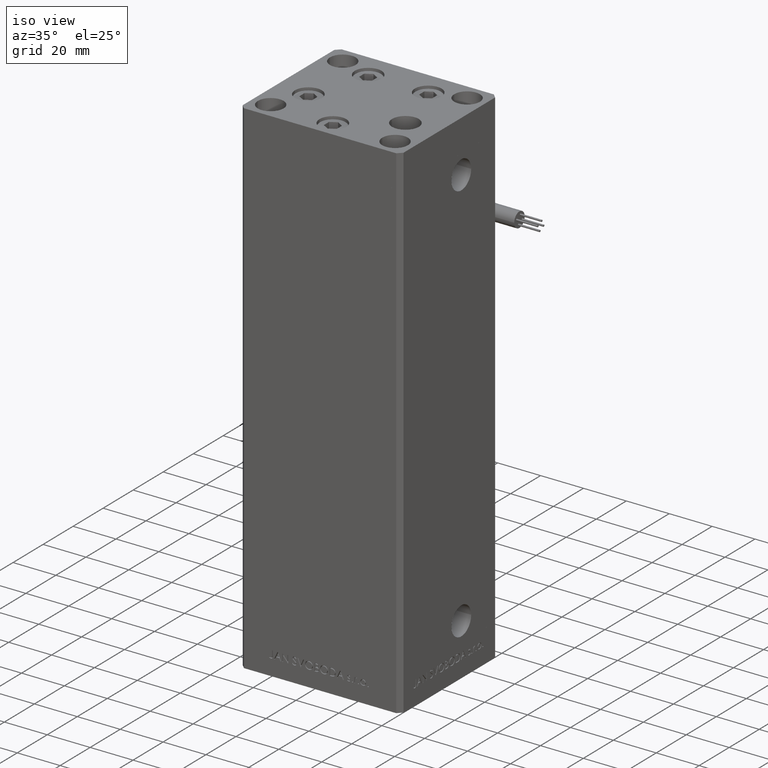
[diagram: clean part render]
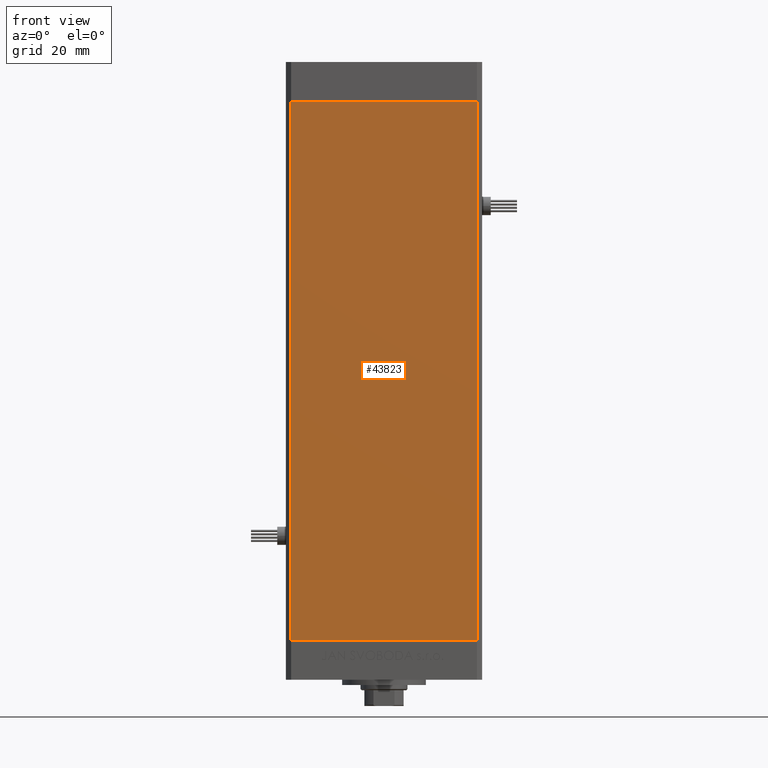
[diagram: tour spotlight — one face highlighted and labeled with its STEP entity id]
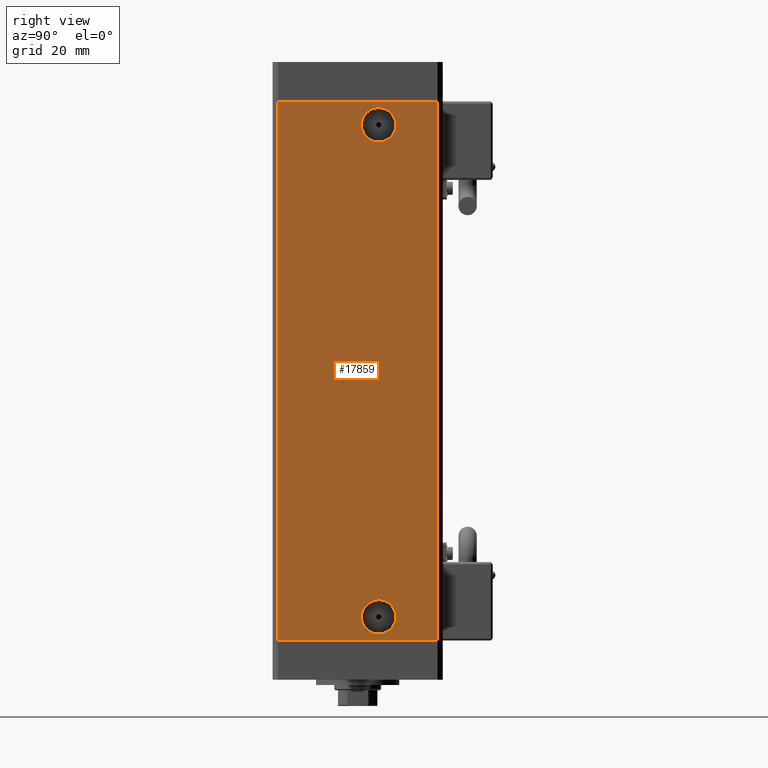
[diagram: tour spotlight — one face highlighted and labeled with its STEP entity id]
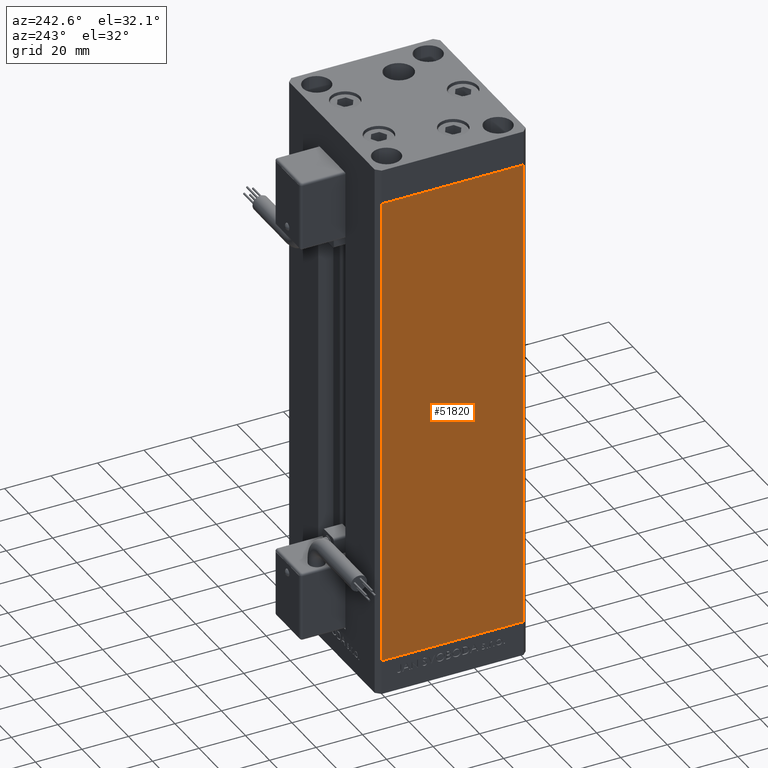
[diagram: tour spotlight — one face highlighted and labeled with its STEP entity id]
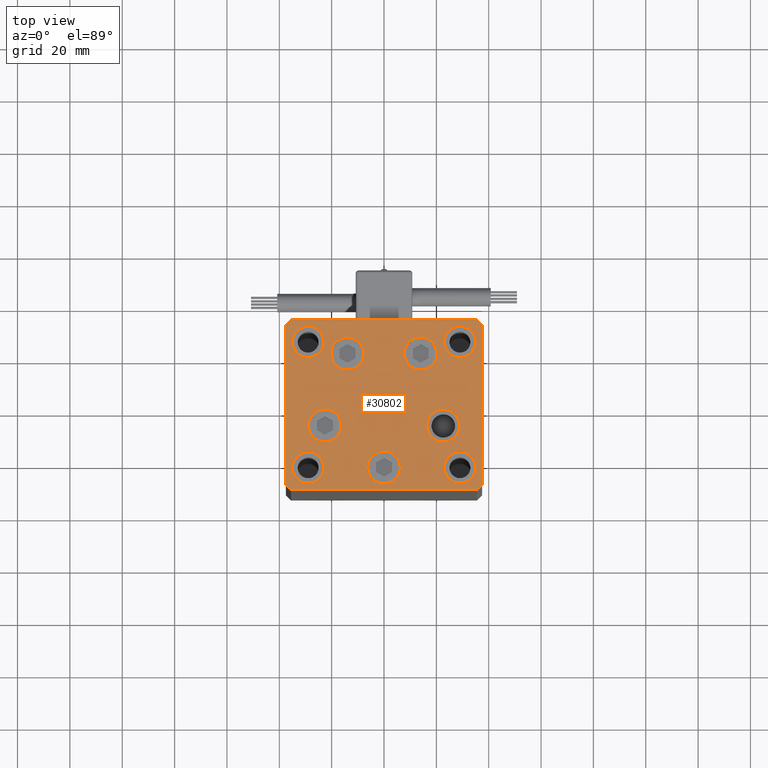
[diagram: tour spotlight — one face highlighted and labeled with its STEP entity id]
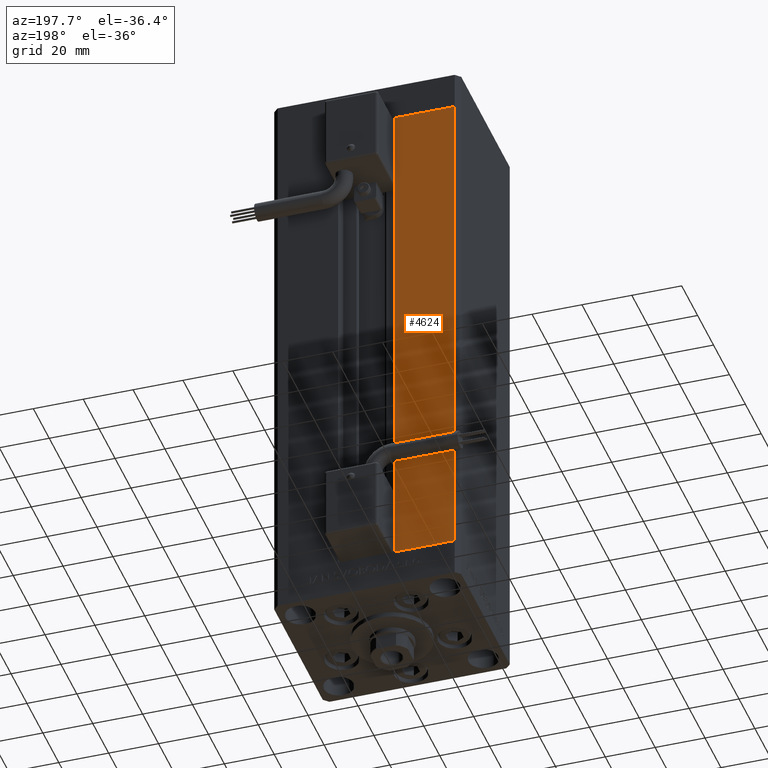
[diagram: tour spotlight — one face highlighted and labeled with its STEP entity id]
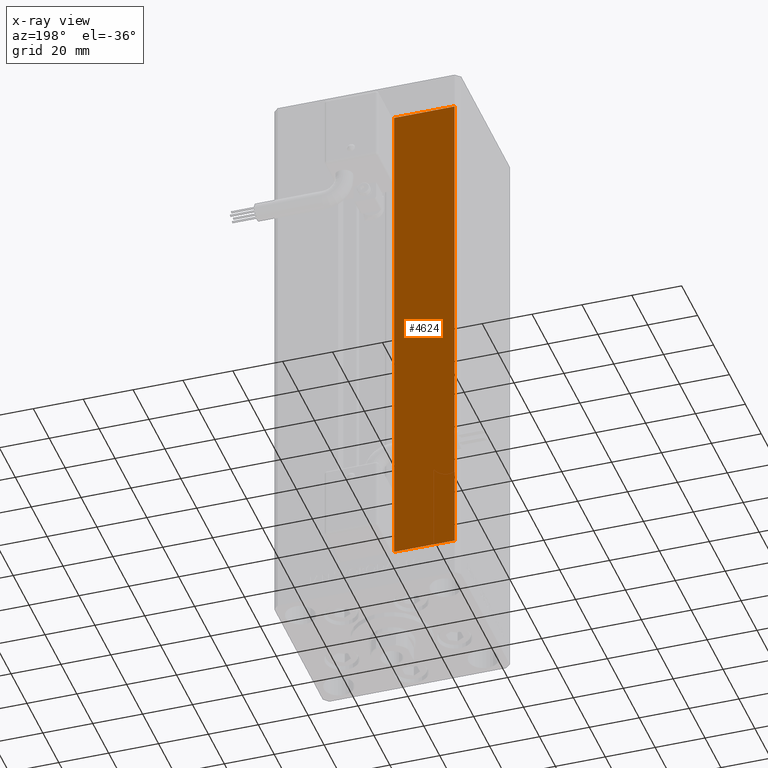
[diagram: x-ray of the same camera — body ghosted, this tour face saturated]
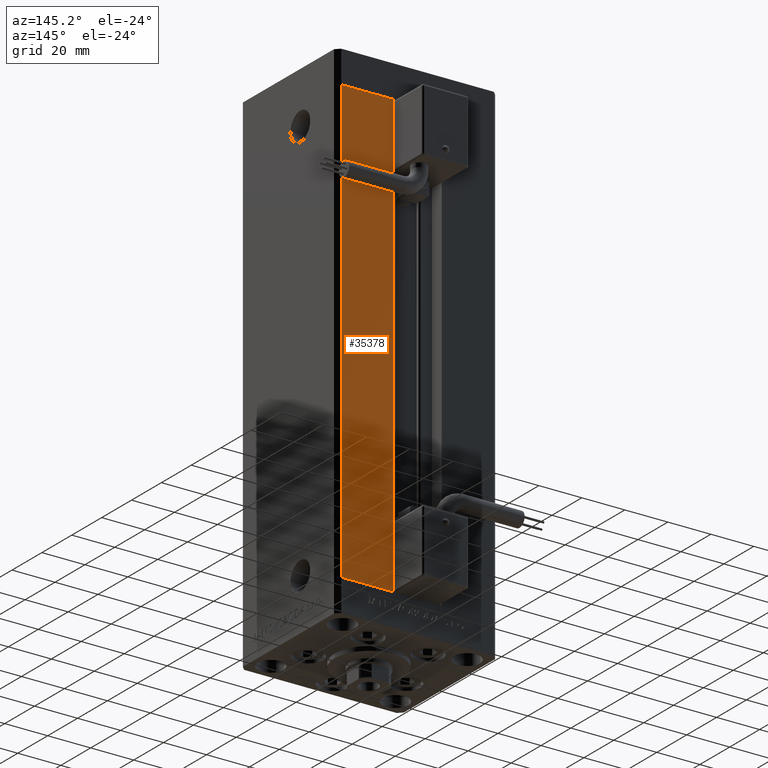
[diagram: tour spotlight — one face highlighted and labeled with its STEP entity id]
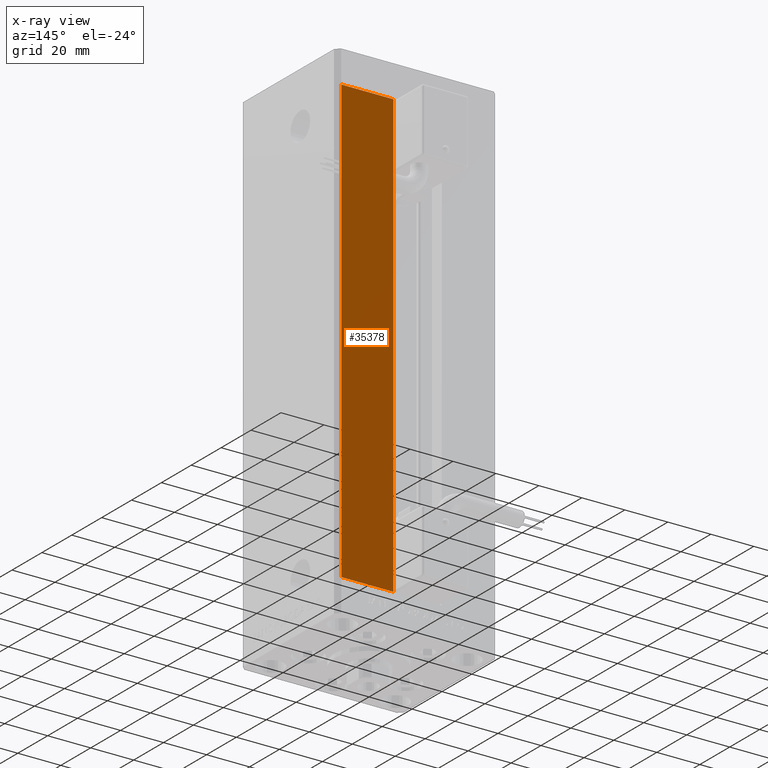
[diagram: x-ray of the same camera — body ghosted, this tour face saturated]
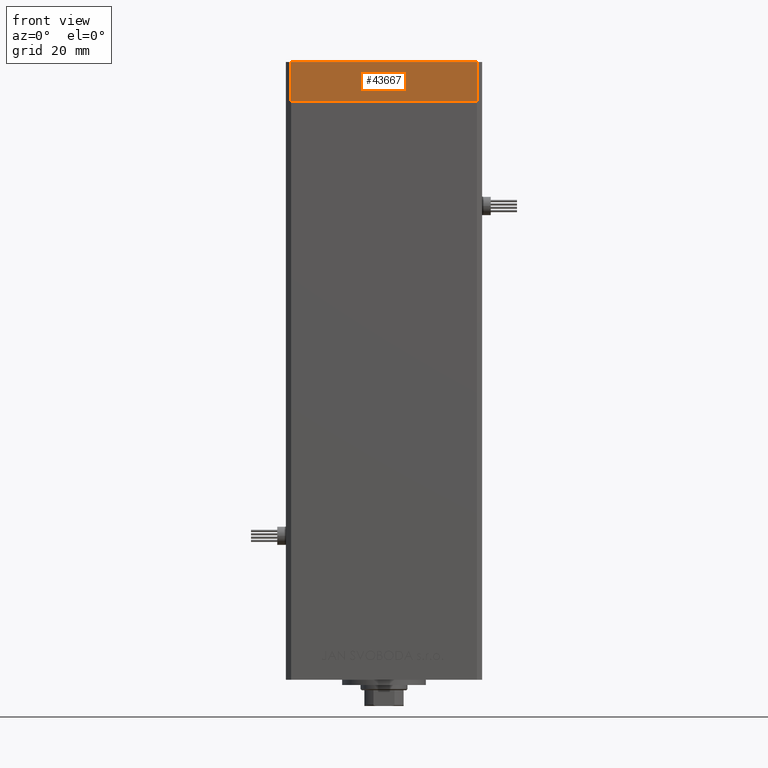
[diagram: tour spotlight — one face highlighted and labeled with its STEP entity id]
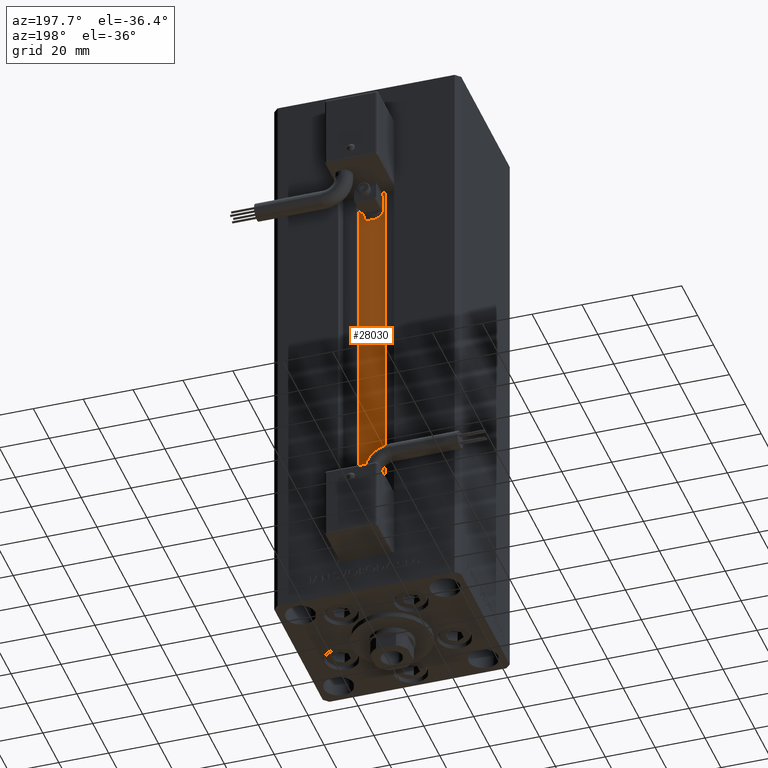
[diagram: tour spotlight — one face highlighted and labeled with its STEP entity id]
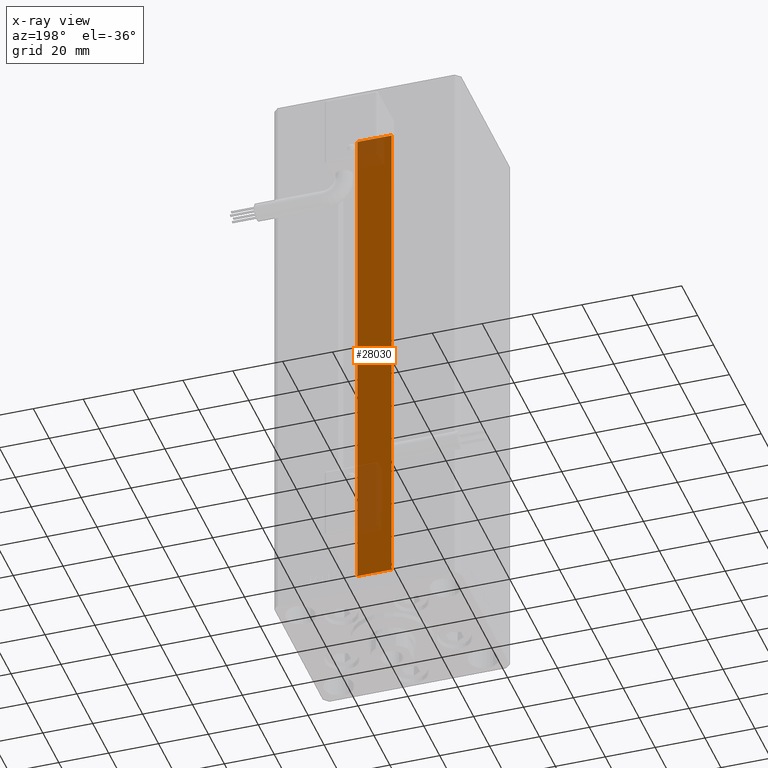
[diagram: x-ray of the same camera — body ghosted, this tour face saturated]
A machine part: a face-by-face anatomy tour. The part has 1377 B-rep faces; the first image is the clean iso view, then the 8 largest visible faces are spotlighted one at a time (largest first), each with its STEP entity span.

Face 1 — front view, entity #43823. In plain terms, the highlighted planar face has unit normal (0, 1, 0).
Definition (entity closure, byte-faithful):
#1151 = VERTEX_POINT ( 'NONE', #38347 ) ;
#1593 = VECTOR ( 'NONE', #45618, 1000.000000000000000 ) ;
#3342 = DIRECTION ( 'NONE',  ( -0.000000000000000000, -0.000000000000000000, -1.000000000000000000 ) ) ;
#3379 = LINE ( 'NONE', #19509, #16998 ) ;
#4199 = VERTEX_POINT ( 'NONE', #22593 ) ;
#9380 = AXIS2_PLACEMENT_3D ( 'NONE', #21085, #32206, #37231 ) ;
#9543 = DIRECTION ( 'NONE',  ( 1.000000000000000000, 0.000000000000000000, 0.000000000000000000 ) ) ;
#11776 = LINE ( 'NONE', #16244, #1593 ) ;
#11868 = CARTESIAN_POINT ( 'NONE',  ( -35.49999999999999289, -32.50000000000000000, 0.000000000000000000 ) ) ;
#12235 = EDGE_CURVE ( 'NONE', #4199, #17484, #31115, .T. ) ;
#12573 = VERTEX_POINT ( 'NONE', #32368 ) ;
#16244 = CARTESIAN_POINT ( 'NONE',  ( -35.49999999999999289, -32.50000000000000000, 206.0000000000000000 ) ) ;
#16998 = VECTOR ( 'NONE', #27448, 1000.000000000000000 ) ;
#17069 = VECTOR ( 'NONE', #9543, 1000.000000000000000 ) ;
#17484 = VERTEX_POINT ( 'NONE', #11868 ) ;
#19509 = CARTESIAN_POINT ( 'NONE',  ( 35.49999999999999289, -32.50000000000000000, 206.0000000000000000 ) ) ;
#21085 = CARTESIAN_POINT ( 'NONE',  ( -35.49999999999999289, -32.50000000000000000, 206.0000000000000000 ) ) ;
#22542 = EDGE_CURVE ( 'NONE', #4199, #1151, #11776, .T. ) ;
#22593 = CARTESIAN_POINT ( 'NONE',  ( -35.49999999999999289, -32.50000000000000000, 206.0000000000000000 ) ) ;
#22821 = ORIENTED_EDGE ( 'NONE', *, *, #47109, .T. ) ;
#23087 = ORIENTED_EDGE ( 'NONE', *, *, #27810, .F. ) ;
#24270 = ORIENTED_EDGE ( 'NONE', *, *, #12235, .T. ) ;
#27448 = DIRECTION ( 'NONE',  ( -0.000000000000000000, -0.000000000000000000, -1.000000000000000000 ) ) ;
#27810 = EDGE_CURVE ( 'NONE', #1151, #12573, #3379, .T. ) ;
#29631 = CARTESIAN_POINT ( 'NONE',  ( -35.49999999999999289, -32.50000000000000000, 0.000000000000000000 ) ) ;
#31115 = LINE ( 'NONE', #47269, #44569 ) ;
#32206 = DIRECTION ( 'NONE',  ( 0.000000000000000000, 1.000000000000000000, 0.000000000000000000 ) ) ;
#32368 = CARTESIAN_POINT ( 'NONE',  ( 35.49999999999999289, -32.50000000000000000, 0.000000000000000000 ) ) ;
#33608 = LINE ( 'NONE', #29631, #17069 ) ;
#34167 = ORIENTED_EDGE ( 'NONE', *, *, #22542, .F. ) ;
#37231 = DIRECTION ( 'NONE',  ( 0.000000000000000000, -0.000000000000000000, 1.000000000000000000 ) ) ;
#38347 = CARTESIAN_POINT ( 'NONE',  ( 35.49999999999999289, -32.50000000000000000, 206.0000000000000000 ) ) ;
#40419 = FACE_OUTER_BOUND ( 'NONE', #43149, .T. ) ;
#43149 = EDGE_LOOP ( 'NONE', ( #22821, #23087, #34167, #24270 ) ) ;
#43823 = ADVANCED_FACE ( 'NONE', ( #40419 ), #44146, .F. ) ;
#44146 = PLANE ( 'NONE',  #9380 ) ;
#44569 = VECTOR ( 'NONE', #3342, 1000.000000000000000 ) ;
#45618 = DIRECTION ( 'NONE',  ( 1.000000000000000000, 0.000000000000000000, 0.000000000000000000 ) ) ;
#47109 = EDGE_CURVE ( 'NONE', #17484, #12573, #33608, .T. ) ;
#47269 = CARTESIAN_POINT ( 'NONE',  ( -35.49999999999999289, -32.50000000000000000, 206.0000000000000000 ) ) ;

Face 2 — right view, entity #17859. In plain terms, the highlighted planar face has unit normal (1, -0, 0).
Definition (entity closure, byte-faithful):
#535 = ORIENTED_EDGE ( 'NONE', *, *, #28875, .F. ) ;
#1627 = VERTEX_POINT ( 'NONE', #26750 ) ;
#2286 = CARTESIAN_POINT ( 'NONE',  ( 37.50000000000000000, 7.999999999999991118, 8.999999999999994671 ) ) ;
#3975 = EDGE_LOOP ( 'NONE', ( #26016, #42199 ) ) ;
#4132 = CARTESIAN_POINT ( 'NONE',  ( 37.50000000000000000, 14.57999999999999829, 8.999999999999994671 ) ) ;
#5100 = CIRCLE ( 'NONE', #42277, 6.580000000000006288 ) ;
#5723 = CARTESIAN_POINT ( 'NONE',  ( 37.50000000000000711, 30.50000000000000000, 0.000000000000000000 ) ) ;
#6499 = DIRECTION ( 'NONE',  ( 0.000000000000000000, 1.000000000000000000, 0.000000000000000000 ) ) ;
#7396 = VERTEX_POINT ( 'NONE', #34666 ) ;
#7532 = CARTESIAN_POINT ( 'NONE',  ( 37.49999999999999289, -30.50000000000000000, 206.0000000000000000 ) ) ;
#7777 = CIRCLE ( 'NONE', #44141, 6.580000000000014282 ) ;
#7884 = LINE ( 'NONE', #44931, #19995 ) ;
#8033 = EDGE_CURVE ( 'NONE', #1627, #21900, #40184, .T. ) ;
#8853 = DIRECTION ( 'NONE',  ( 0.000000000000000000, 1.000000000000000000, 0.000000000000000000 ) ) ;
#9853 = FACE_BOUND ( 'NONE', #3975, .T. ) ;
#10634 = VERTEX_POINT ( 'NONE', #5723 ) ;
#11214 = EDGE_CURVE ( 'NONE', #10634, #29402, #7884, .T. ) ;
#12721 = VECTOR ( 'NONE', #50399, 1000.000000000000000 ) ;
#13381 = LINE ( 'NONE', #34263, #12721 ) ;
#14076 = DIRECTION ( 'NONE',  ( 2.275047181608928137E-16, 1.000000000000000000, 0.000000000000000000 ) ) ;
#14240 = DIRECTION ( 'NONE',  ( 0.000000000000000000, 1.000000000000000000, 0.000000000000000000 ) ) ;
#14973 = CARTESIAN_POINT ( 'NONE',  ( 37.50000000000000711, 30.50000000000000000, 206.0000000000000000 ) ) ;
#15852 = CARTESIAN_POINT ( 'NONE',  ( 37.50000000000000000, 14.58000000000000540, 196.9999999999999716 ) ) ;
#15920 = DIRECTION ( 'NONE',  ( 1.000000000000000000, -2.275047181608927644E-16, 0.000000000000000000 ) ) ;
#15944 = DIRECTION ( 'NONE',  ( 1.000000000000000000, -2.275047181608927644E-16, 0.000000000000000000 ) ) ;
#17354 = AXIS2_PLACEMENT_3D ( 'NONE', #23856, #15920, #8853 ) ;
#17859 = ADVANCED_FACE ( 'NONE', ( #29424, #9853, #18030 ), #21737, .T. ) ;
#18030 = FACE_OUTER_BOUND ( 'NONE', #39418, .T. ) ;
#18767 = EDGE_LOOP ( 'NONE', ( #535, #23949 ) ) ;
#19699 = LINE ( 'NONE', #7532, #28090 ) ;
#19995 = VECTOR ( 'NONE', #35939, 1000.000000000000000 ) ;
#21737 = PLANE ( 'NONE',  #32801 ) ;
#21814 = CARTESIAN_POINT ( 'NONE',  ( 37.50000000000000000, 1.419999999999985496, 8.999999999999994671 ) ) ;
#21900 = VERTEX_POINT ( 'NONE', #15852 ) ;
#22242 = VERTEX_POINT ( 'NONE', #4132 ) ;
#23365 = CARTESIAN_POINT ( 'NONE',  ( 37.49999999999999289, -30.50000000000000000, 0.000000000000000000 ) ) ;
#23856 = CARTESIAN_POINT ( 'NONE',  ( 37.50000000000000000, 7.999999999999991118, 196.9999999999999716 ) ) ;
#23949 = ORIENTED_EDGE ( 'NONE', *, *, #42926, .F. ) ;
#24393 = ORIENTED_EDGE ( 'NONE', *, *, #33820, .T. ) ;
#25451 = CARTESIAN_POINT ( 'NONE',  ( 37.50000000000000711, 30.50000000000000000, 206.0000000000000000 ) ) ;
#25458 = VERTEX_POINT ( 'NONE', #21814 ) ;
#25470 = EDGE_CURVE ( 'NONE', #40128, #7396, #13381, .T. ) ;
#26016 = ORIENTED_EDGE ( 'NONE', *, *, #29479, .F. ) ;
#26750 = CARTESIAN_POINT ( 'NONE',  ( 37.50000000000000000, 1.419999999999975948, 196.9999999999999716 ) ) ;
#27106 = DIRECTION ( 'NONE',  ( -0.000000000000000000, -0.000000000000000000, -1.000000000000000000 ) ) ;
#27395 = LINE ( 'NONE', #14973, #35659 ) ;
#28023 = AXIS2_PLACEMENT_3D ( 'NONE', #2286, #50429, #6499 ) ;
#28090 = VECTOR ( 'NONE', #27106, 1000.000000000000000 ) ;
#28875 = EDGE_CURVE ( 'NONE', #22242, #25458, #40728, .T. ) ;
#29060 = EDGE_CURVE ( 'NONE', #40128, #10634, #27395, .T. ) ;
#29402 = VERTEX_POINT ( 'NONE', #23365 ) ;
#29424 = FACE_BOUND ( 'NONE', #18767, .T. ) ;
#29479 = EDGE_CURVE ( 'NONE', #21900, #1627, #7777, .T. ) ;
#32725 = ORIENTED_EDGE ( 'NONE', *, *, #25470, .T. ) ;
#32801 = AXIS2_PLACEMENT_3D ( 'NONE', #25451, #41604, #14076 ) ;
#33820 = EDGE_CURVE ( 'NONE', #7396, #29402, #19699, .T. ) ;
#34153 = ORIENTED_EDGE ( 'NONE', *, *, #29060, .F. ) ;
#34263 = CARTESIAN_POINT ( 'NONE',  ( 37.50000000000000711, 30.50000000000000000, 206.0000000000000000 ) ) ;
#34666 = CARTESIAN_POINT ( 'NONE',  ( 37.49999999999999289, -30.50000000000000000, 206.0000000000000000 ) ) ;
#35659 = VECTOR ( 'NONE', #43562, 1000.000000000000000 ) ;
#35939 = DIRECTION ( 'NONE',  ( -2.275047181608927644E-16, -1.000000000000000000, 0.000000000000000000 ) ) ;
#39418 = EDGE_LOOP ( 'NONE', ( #51152, #34153, #32725, #24393 ) ) ;
#40128 = VERTEX_POINT ( 'NONE', #51584 ) ;
#40184 = CIRCLE ( 'NONE', #17354, 6.580000000000014282 ) ;
#40553 = CARTESIAN_POINT ( 'NONE',  ( 37.50000000000000000, 7.999999999999991118, 196.9999999999999716 ) ) ;
#40728 = CIRCLE ( 'NONE', #28023, 6.580000000000006288 ) ;
#41604 = DIRECTION ( 'NONE',  ( 1.000000000000000000, -2.275047181608928137E-16, 0.000000000000000000 ) ) ;
#42199 = ORIENTED_EDGE ( 'NONE', *, *, #8033, .F. ) ;
#42277 = AXIS2_PLACEMENT_3D ( 'NONE', #46011, #50485, #14240 ) ;
#42926 = EDGE_CURVE ( 'NONE', #25458, #22242, #5100, .T. ) ;
#43562 = DIRECTION ( 'NONE',  ( -0.000000000000000000, -0.000000000000000000, -1.000000000000000000 ) ) ;
#44141 = AXIS2_PLACEMENT_3D ( 'NONE', #40553, #15944, #48501 ) ;
#44931 = CARTESIAN_POINT ( 'NONE',  ( 37.50000000000000711, 30.50000000000000000, 0.000000000000000000 ) ) ;
#46011 = CARTESIAN_POINT ( 'NONE',  ( 37.50000000000000000, 7.999999999999991118, 8.999999999999994671 ) ) ;
#48501 = DIRECTION ( 'NONE',  ( 0.000000000000000000, 1.000000000000000000, 0.000000000000000000 ) ) ;
#50399 = DIRECTION ( 'NONE',  ( -2.275047181608927644E-16, -1.000000000000000000, 0.000000000000000000 ) ) ;
#50429 = DIRECTION ( 'NONE',  ( 1.000000000000000000, -2.275047181608927644E-16, 0.000000000000000000 ) ) ;
#50485 = DIRECTION ( 'NONE',  ( 1.000000000000000000, -2.275047181608927644E-16, 0.000000000000000000 ) ) ;
#51152 = ORIENTED_EDGE ( 'NONE', *, *, #11214, .F. ) ;
#51584 = CARTESIAN_POINT ( 'NONE',  ( 37.50000000000000711, 30.50000000000000000, 206.0000000000000000 ) ) ;

Face 3 — auxiliary view, entity #51820. In plain terms, the highlighted planar face has unit normal (1, 0, 0).
Definition (entity closure, byte-faithful):
#646 = DIRECTION ( 'NONE',  ( -0.000000000000000000, -0.000000000000000000, -1.000000000000000000 ) ) ;
#1493 = CARTESIAN_POINT ( 'NONE',  ( -37.50000000000000711, 30.50000000000000000, 206.0000000000000000 ) ) ;
#2282 = DIRECTION ( 'NONE',  ( 1.000000000000000000, 2.275047181608928137E-16, -0.000000000000000000 ) ) ;
#4728 = EDGE_LOOP ( 'NONE', ( #42350, #46094, #9176, #47745 ) ) ;
#6789 = VECTOR ( 'NONE', #24484, 1000.000000000000000 ) ;
#8712 = CARTESIAN_POINT ( 'NONE',  ( -37.49999999999999289, -30.50000000000000000, 206.0000000000000000 ) ) ;
#9176 = ORIENTED_EDGE ( 'NONE', *, *, #34728, .F. ) ;
#10669 = CARTESIAN_POINT ( 'NONE',  ( -37.49999999999999289, -30.50000000000000000, 206.0000000000000000 ) ) ;
#11326 = CARTESIAN_POINT ( 'NONE',  ( -37.50000000000000711, 30.50000000000000000, 0.000000000000000000 ) ) ;
#11787 = DIRECTION ( 'NONE',  ( 2.275047181608927644E-16, -1.000000000000000000, 0.000000000000000000 ) ) ;
#12891 = CARTESIAN_POINT ( 'NONE',  ( -37.49999999999999289, -30.50000000000000000, 0.000000000000000000 ) ) ;
#14447 = FACE_OUTER_BOUND ( 'NONE', #4728, .T. ) ;
#15618 = EDGE_CURVE ( 'NONE', #20563, #41433, #39813, .T. ) ;
#15868 = VERTEX_POINT ( 'NONE', #10669 ) ;
#19674 = VECTOR ( 'NONE', #11787, 1000.000000000000000 ) ;
#20563 = VERTEX_POINT ( 'NONE', #47389 ) ;
#20611 = DIRECTION ( 'NONE',  ( -0.000000000000000000, -0.000000000000000000, -1.000000000000000000 ) ) ;
#21046 = CARTESIAN_POINT ( 'NONE',  ( -37.50000000000000711, 30.50000000000000000, 0.000000000000000000 ) ) ;
#24484 = DIRECTION ( 'NONE',  ( 2.275047181608927644E-16, -1.000000000000000000, 0.000000000000000000 ) ) ;
#25273 = LINE ( 'NONE', #21046, #6789 ) ;
#25343 = EDGE_CURVE ( 'NONE', #41433, #27297, #25273, .T. ) ;
#27297 = VERTEX_POINT ( 'NONE', #12891 ) ;
#28674 = CARTESIAN_POINT ( 'NONE',  ( -37.50000000000000711, 30.50000000000000000, 206.0000000000000000 ) ) ;
#29529 = LINE ( 'NONE', #1493, #19674 ) ;
#32491 = LINE ( 'NONE', #8712, #38343 ) ;
#32648 = EDGE_CURVE ( 'NONE', #15868, #27297, #32491, .T. ) ;
#32729 = VECTOR ( 'NONE', #646, 1000.000000000000000 ) ;
#34059 = AXIS2_PLACEMENT_3D ( 'NONE', #51476, #2282, #50953 ) ;
#34728 = EDGE_CURVE ( 'NONE', #20563, #15868, #29529, .T. ) ;
#34817 = PLANE ( 'NONE',  #34059 ) ;
#38343 = VECTOR ( 'NONE', #20611, 1000.000000000000000 ) ;
#39813 = LINE ( 'NONE', #28674, #32729 ) ;
#41433 = VERTEX_POINT ( 'NONE', #11326 ) ;
#42350 = ORIENTED_EDGE ( 'NONE', *, *, #25343, .T. ) ;
#46094 = ORIENTED_EDGE ( 'NONE', *, *, #32648, .F. ) ;
#47389 = CARTESIAN_POINT ( 'NONE',  ( -37.50000000000000711, 30.50000000000000000, 206.0000000000000000 ) ) ;
#47745 = ORIENTED_EDGE ( 'NONE', *, *, #15618, .T. ) ;
#50953 = DIRECTION ( 'NONE',  ( -2.275047181608928137E-16, 1.000000000000000000, 0.000000000000000000 ) ) ;
#51476 = CARTESIAN_POINT ( 'NONE',  ( -37.50000000000000711, 30.50000000000000000, 206.0000000000000000 ) ) ;
#51820 = ADVANCED_FACE ( 'NONE', ( #14447 ), #34817, .F. ) ;

Face 4 — top view, entity #30802. In plain terms, the highlighted planar face has unit normal (0, 0, 1).
Definition (entity closure, byte-faithful):
#15 = VECTOR ( 'NONE', #14496, 1000.000000000000000 ) ;
#298 = CARTESIAN_POINT ( 'NONE',  ( -6.249999999999997335, -24.00000000000000000, 0.000000000000000000 ) ) ;
#506 = CARTESIAN_POINT ( 'NONE',  ( 23.00000000000001066, -23.99999999999999289, 0.000000000000000000 ) ) ;
#721 = ORIENTED_EDGE ( 'NONE', *, *, #43663, .T. ) ;
#1319 = AXIS2_PLACEMENT_3D ( 'NONE', #35204, #51337, #42625 ) ;
#1402 = EDGE_CURVE ( 'NONE', #27819, #33862, #34011, .T. ) ;
#1724 = VERTEX_POINT ( 'NONE', #33587 ) ;
#1797 = DIRECTION ( 'NONE',  ( 0.000000000000000000, -0.000000000000000000, -1.000000000000000000 ) ) ;
#1930 = ORIENTED_EDGE ( 'NONE', *, *, #8505, .T. ) ;
#2308 = CARTESIAN_POINT ( 'NONE',  ( -37.49999999999998579, -30.50000000000001421, 0.000000000000000000 ) ) ;
#2595 = CARTESIAN_POINT ( 'NONE',  ( 20.24106857963322526, 19.50000000000000000, 0.000000000000000000 ) ) ;
#2633 = DIRECTION ( 'NONE',  ( 0.000000000000000000, -0.000000000000000000, -1.000000000000000000 ) ) ;
#2884 = DIRECTION ( 'NONE',  ( 1.000000000000000000, 0.000000000000000000, 0.000000000000000000 ) ) ;
#3285 = DIRECTION ( 'NONE',  ( 1.000000000000000000, 0.000000000000000000, 0.000000000000000000 ) ) ;
#3553 = AXIS2_PLACEMENT_3D ( 'NONE', #22222, #9812, #42086 ) ;
#3701 = DIRECTION ( 'NONE',  ( 0.7071067811865474617, -0.7071067811865474617, 0.000000000000000000 ) ) ;
#3882 = ORIENTED_EDGE ( 'NONE', *, *, #4208, .T. ) ;
#4208 = EDGE_CURVE ( 'NONE', #12233, #13655, #14690, .T. ) ;
#4275 = DIRECTION ( 'NONE',  ( 0.000000000000000000, -0.000000000000000000, -1.000000000000000000 ) ) ;
#4484 = CARTESIAN_POINT ( 'NONE',  ( 35.49999999999992184, 32.50000000000000711, 0.000000000000000000 ) ) ;
#4594 = VERTEX_POINT ( 'NONE', #2308 ) ;
#4623 = DIRECTION ( 'NONE',  ( 1.000000000000000000, 0.000000000000000000, 0.000000000000000000 ) ) ;
#4832 = CARTESIAN_POINT ( 'NONE',  ( -29.00000000000001066, 24.00000000000000711, 0.000000000000000000 ) ) ;
#4850 = CIRCLE ( 'NONE', #25962, 6.250000000000001776 ) ;
#4992 = EDGE_CURVE ( 'NONE', #11039, #43500, #29749, .T. ) ;
#5401 = EDGE_CURVE ( 'NONE', #1724, #23784, #13888, .T. ) ;
#5518 = DIRECTION ( 'NONE',  ( -1.478780668045802821E-15, 1.000000000000000000, 0.000000000000000000 ) ) ;
#5665 = AXIS2_PLACEMENT_3D ( 'NONE', #23202, #39874, #43063 ) ;
#5945 = VERTEX_POINT ( 'NONE', #14683 ) ;
#5992 = VECTOR ( 'NONE', #3701, 1000.000000000000114 ) ;
#6056 = DIRECTION ( 'NONE',  ( 1.000000000000000000, 0.000000000000000000, 0.000000000000000000 ) ) ;
#6289 = LINE ( 'NONE', #26652, #15 ) ;
#6827 = CARTESIAN_POINT ( 'NONE',  ( 37.49999999999992184, 30.50000000000001066, 0.000000000000000000 ) ) ;
#6852 = FACE_BOUND ( 'NONE', #26648, .T. ) ;
#6939 = EDGE_LOOP ( 'NONE', ( #21838, #10345 ) ) ;
#7118 = FACE_OUTER_BOUND ( 'NONE', #23719, .T. ) ;
#7124 = VECTOR ( 'NONE', #45914, 999.9999999999998863 ) ;
#7406 = ORIENTED_EDGE ( 'NONE', *, *, #1402, .F. ) ;
#7649 = CARTESIAN_POINT ( 'NONE',  ( -37.50000000000001421, 30.49999999999998579, 0.000000000000000000 ) ) ;
#8121 = ORIENTED_EDGE ( 'NONE', *, *, #4992, .T. ) ;
#8154 = CARTESIAN_POINT ( 'NONE',  ( 16.37741699796951877, -8.000000000000000000, 0.000000000000000000 ) ) ;
#8191 = EDGE_LOOP ( 'NONE', ( #42863, #7406 ) ) ;
#8505 = EDGE_CURVE ( 'NONE', #8842, #35997, #43591, .T. ) ;
#8562 = EDGE_CURVE ( 'NONE', #35128, #22467, #24320, .T. ) ;
#8582 = CIRCLE ( 'NONE', #30544, 6.000000000000005329 ) ;
#8842 = VERTEX_POINT ( 'NONE', #2595 ) ;
#8890 = CARTESIAN_POINT ( 'NONE',  ( -29.00000000000001066, -23.99999999999999289, 0.000000000000000000 ) ) ;
#9072 = DIRECTION ( 'NONE',  ( 1.000000000000000000, 0.000000000000000000, 0.000000000000000000 ) ) ;
#9287 = VERTEX_POINT ( 'NONE', #21724 ) ;
#9637 = CIRCLE ( 'NONE', #16387, 6.000000000000005329 ) ;
#9751 = CARTESIAN_POINT ( 'NONE',  ( -22.62741699796951877, -8.000000000000005329, 0.000000000000000000 ) ) ;
#9757 = ORIENTED_EDGE ( 'NONE', *, *, #12463, .T. ) ;
#9791 = CARTESIAN_POINT ( 'NONE',  ( 2.939152317953647500E-15, -24.00000000000000000, 0.000000000000000000 ) ) ;
#9797 = FACE_BOUND ( 'NONE', #35208, .T. ) ;
#9812 = DIRECTION ( 'NONE',  ( 0.000000000000000000, -0.000000000000000000, -1.000000000000000000 ) ) ;
#10345 = ORIENTED_EDGE ( 'NONE', *, *, #22840, .T. ) ;
#10557 = DIRECTION ( 'NONE',  ( 0.7071067811865487940, 0.7071067811865463515, 0.000000000000000000 ) ) ;
#11039 = VERTEX_POINT ( 'NONE', #6827 ) ;
#11237 = CIRCLE ( 'NONE', #50920, 6.250000000000001776 ) ;
#11254 = CARTESIAN_POINT ( 'NONE',  ( -37.50000000000001421, 30.49999999999998579, 0.000000000000000000 ) ) ;
#11295 = CARTESIAN_POINT ( 'NONE',  ( 6.250000000000002665, -24.00000000000000000, 0.000000000000000000 ) ) ;
#11410 = ORIENTED_EDGE ( 'NONE', *, *, #23734, .T. ) ;
#11567 = EDGE_CURVE ( 'NONE', #48300, #28540, #11595, .T. ) ;
#11595 = CIRCLE ( 'NONE', #37750, 6.250000000000001776 ) ;
#11900 = VERTEX_POINT ( 'NONE', #38148 ) ;
#11916 = CARTESIAN_POINT ( 'NONE',  ( 35.49999999999992184, 32.50000000000000711, 0.000000000000000000 ) ) ;
#12010 = CARTESIAN_POINT ( 'NONE',  ( -29.00000000000001066, 24.00000000000000711, 0.000000000000000000 ) ) ;
#12233 = VERTEX_POINT ( 'NONE', #11295 ) ;
#12463 = EDGE_CURVE ( 'NONE', #28540, #48300, #4850, .T. ) ;
#12762 = DIRECTION ( 'NONE',  ( 1.000000000000000000, 0.000000000000000000, 0.000000000000000000 ) ) ;
#13655 = VERTEX_POINT ( 'NONE', #298 ) ;
#13888 = CIRCLE ( 'NONE', #27404, 6.250000000000000000 ) ;
#13894 = EDGE_CURVE ( 'NONE', #35997, #8842, #27584, .T. ) ;
#14249 = CARTESIAN_POINT ( 'NONE',  ( 37.50000000000001421, -30.50000000000000711, 0.000000000000000000 ) ) ;
#14496 = DIRECTION ( 'NONE',  ( 1.000000000000000000, 9.773090005503140331E-17, 0.000000000000000000 ) ) ;
#14539 = FACE_BOUND ( 'NONE', #8191, .T. ) ;
#14683 = CARTESIAN_POINT ( 'NONE',  ( -23.00000000000001421, -23.99999999999999289, 0.000000000000000000 ) ) ;
#14690 = CIRCLE ( 'NONE', #48500, 6.250000000000000000 ) ;
#14841 = CARTESIAN_POINT ( 'NONE',  ( -20.24106857963322881, 19.49999999999999645, 0.000000000000000000 ) ) ;
#14933 = CARTESIAN_POINT ( 'NONE',  ( 22.62741699796951877, -8.000000000000000000, 0.000000000000000000 ) ) ;
#15250 = EDGE_CURVE ( 'NONE', #25014, #30159, #38620, .T. ) ;
#15476 = ORIENTED_EDGE ( 'NONE', *, *, #50512, .T. ) ;
#15603 = CARTESIAN_POINT ( 'NONE',  ( -37.49999999999998579, -30.50000000000001421, 0.000000000000000000 ) ) ;
#16214 = CARTESIAN_POINT ( 'NONE',  ( -29.00000000000001066, -23.99999999999999289, 0.000000000000000000 ) ) ;
#16387 = AXIS2_PLACEMENT_3D ( 'NONE', #51999, #36120, #4623 ) ;
#16543 = CARTESIAN_POINT ( 'NONE',  ( 23.00000000000001066, 24.00000000000000711, 0.000000000000000000 ) ) ;
#16964 = CARTESIAN_POINT ( 'NONE',  ( -22.62741699796951877, -8.000000000000005329, 0.000000000000000000 ) ) ;
#17156 = DIRECTION ( 'NONE',  ( 1.000000000000000000, 0.000000000000000000, 0.000000000000000000 ) ) ;
#17358 = ORIENTED_EDGE ( 'NONE', *, *, #13894, .T. ) ;
#18392 = EDGE_LOOP ( 'NONE', ( #15476, #28495 ) ) ;
#18707 = ORIENTED_EDGE ( 'NONE', *, *, #15250, .F. ) ;
#18730 = VERTEX_POINT ( 'NONE', #16543 ) ;
#18791 = ORIENTED_EDGE ( 'NONE', *, *, #30128, .F. ) ;
#19167 = VERTEX_POINT ( 'NONE', #40571 ) ;
#19990 = AXIS2_PLACEMENT_3D ( 'NONE', #51316, #2633, #23520 ) ;
#20554 = CARTESIAN_POINT ( 'NONE',  ( -16.37741699796951877, -8.000000000000005329, 0.000000000000000000 ) ) ;
#20766 = VECTOR ( 'NONE', #28560, 1000.000000000000000 ) ;
#21042 = DIRECTION ( 'NONE',  ( 0.000000000000000000, 0.000000000000000000, 1.000000000000000000 ) ) ;
#21219 = DIRECTION ( 'NONE',  ( 0.000000000000000000, 0.000000000000000000, 1.000000000000000000 ) ) ;
#21353 = EDGE_CURVE ( 'NONE', #19167, #5945, #47192, .T. ) ;
#21484 = DIRECTION ( 'NONE',  ( 1.000000000000000000, 0.000000000000000000, 0.000000000000000000 ) ) ;
#21548 = CARTESIAN_POINT ( 'NONE',  ( 22.62741699796951877, -8.000000000000000000, 0.000000000000000000 ) ) ;
#21724 = CARTESIAN_POINT ( 'NONE',  ( 37.50000000000001421, -30.50000000000000711, 0.000000000000000000 ) ) ;
#21838 = ORIENTED_EDGE ( 'NONE', *, *, #50739, .T. ) ;
#22184 = CARTESIAN_POINT ( 'NONE',  ( 35.00000000000001421, -23.99999999999999289, 0.000000000000000000 ) ) ;
#22222 = CARTESIAN_POINT ( 'NONE',  ( -13.99106857963322703, 19.49999999999999645, 0.000000000000000000 ) ) ;
#22467 = VERTEX_POINT ( 'NONE', #11254 ) ;
#22729 = DIRECTION ( 'NONE',  ( 1.000000000000000000, 0.000000000000000000, 0.000000000000000000 ) ) ;
#22840 = EDGE_CURVE ( 'NONE', #34596, #39211, #39636, .T. ) ;
#23202 = CARTESIAN_POINT ( 'NONE',  ( 29.00000000000001066, -23.99999999999999289, 0.000000000000000000 ) ) ;
#23223 = CIRCLE ( 'NONE', #42651, 5.999999999999998224 ) ;
#23293 = DIRECTION ( 'NONE',  ( -1.000000000000000000, -1.954618001100629052E-16, 0.000000000000000000 ) ) ;
#23409 = CARTESIAN_POINT ( 'NONE',  ( -23.00000000000001421, 24.00000000000000711, 0.000000000000000000 ) ) ;
#23518 = FACE_BOUND ( 'NONE', #42229, .T. ) ;
#23520 = DIRECTION ( 'NONE',  ( 1.000000000000000000, 0.000000000000000000, 0.000000000000000000 ) ) ;
#23716 = VECTOR ( 'NONE', #10557, 1000.000000000000000 ) ;
#23719 = EDGE_LOOP ( 'NONE', ( #30181, #46568, #28096, #721, #8121, #11410, #41259, #30362 ) ) ;
#23734 = EDGE_CURVE ( 'NONE', #43500, #35128, #48158, .T. ) ;
#23784 = VERTEX_POINT ( 'NONE', #14841 ) ;
#23802 = EDGE_LOOP ( 'NONE', ( #36247, #3882 ) ) ;
#23820 = EDGE_LOOP ( 'NONE', ( #17358, #1930 ) ) ;
#23829 = AXIS2_PLACEMENT_3D ( 'NONE', #34631, #48041, #2884 ) ;
#24320 = LINE ( 'NONE', #44199, #20766 ) ;
#25014 = VERTEX_POINT ( 'NONE', #506 ) ;
#25379 = VECTOR ( 'NONE', #44443, 1000.000000000000000 ) ;
#25890 = EDGE_CURVE ( 'NONE', #22467, #4594, #32245, .T. ) ;
#25907 = DIRECTION ( 'NONE',  ( 0.000000000000000000, -0.000000000000000000, -1.000000000000000000 ) ) ;
#25914 = FACE_BOUND ( 'NONE', #23802, .T. ) ;
#25962 = AXIS2_PLACEMENT_3D ( 'NONE', #14933, #26821, #3285 ) ;
#26648 = EDGE_LOOP ( 'NONE', ( #27370, #18707 ) ) ;
#26652 = CARTESIAN_POINT ( 'NONE',  ( -35.49999999999998579, -32.50000000000001421, 0.000000000000000000 ) ) ;
#26821 = DIRECTION ( 'NONE',  ( 0.000000000000000000, -0.000000000000000000, -1.000000000000000000 ) ) ;
#27370 = ORIENTED_EDGE ( 'NONE', *, *, #49318, .F. ) ;
#27404 = AXIS2_PLACEMENT_3D ( 'NONE', #28000, #43381, #44166 ) ;
#27491 = FACE_BOUND ( 'NONE', #47026, .T. ) ;
#27557 = EDGE_CURVE ( 'NONE', #4594, #51532, #39693, .T. ) ;
#27584 = CIRCLE ( 'NONE', #19990, 6.250000000000000000 ) ;
#27819 = VERTEX_POINT ( 'NONE', #43864 ) ;
#28000 = CARTESIAN_POINT ( 'NONE',  ( -13.99106857963322703, 19.49999999999999645, 0.000000000000000000 ) ) ;
#28022 = AXIS2_PLACEMENT_3D ( 'NONE', #8890, #21042, #50129 ) ;
#28096 = ORIENTED_EDGE ( 'NONE', *, *, #43655, .T. ) ;
#28199 = DIRECTION ( 'NONE',  ( 1.000000000000000000, 0.000000000000000000, 0.000000000000000000 ) ) ;
#28495 = ORIENTED_EDGE ( 'NONE', *, *, #5401, .T. ) ;
#28540 = VERTEX_POINT ( 'NONE', #50490 ) ;
#28560 = DIRECTION ( 'NONE',  ( -0.7071067811865426878, -0.7071067811865524577, 0.000000000000000000 ) ) ;
#28973 = DIRECTION ( 'NONE',  ( 1.000000000000000000, 0.000000000000000000, 0.000000000000000000 ) ) ;
#29495 = AXIS2_PLACEMENT_3D ( 'NONE', #16964, #4275, #12762 ) ;
#29538 = VECTOR ( 'NONE', #23293, 1000.000000000000000 ) ;
#29749 = LINE ( 'NONE', #32952, #7124 ) ;
#29883 = FACE_BOUND ( 'NONE', #18392, .T. ) ;
#30128 = EDGE_CURVE ( 'NONE', #11900, #18730, #45832, .T. ) ;
#30159 = VERTEX_POINT ( 'NONE', #22184 ) ;
#30181 = ORIENTED_EDGE ( 'NONE', *, *, #27557, .T. ) ;
#30362 = ORIENTED_EDGE ( 'NONE', *, *, #25890, .T. ) ;
#30544 = AXIS2_PLACEMENT_3D ( 'NONE', #44366, #32166, #28199 ) ;
#30802 = ADVANCED_FACE ( 'NONE', ( #29883, #46051, #9797, #25914, #42069, #6852, #27491, #14539, #23518, #7118 ), #47085, .T. ) ;
#32166 = DIRECTION ( 'NONE',  ( 0.000000000000000000, 0.000000000000000000, 1.000000000000000000 ) ) ;
#32245 = LINE ( 'NONE', #7649, #25379 ) ;
#32952 = CARTESIAN_POINT ( 'NONE',  ( 37.49999999999992184, 30.50000000000001066, 0.000000000000000000 ) ) ;
#33587 = CARTESIAN_POINT ( 'NONE',  ( -7.741068579633227031, 19.49999999999999645, 0.000000000000000000 ) ) ;
#33862 = VERTEX_POINT ( 'NONE', #23409 ) ;
#34011 = CIRCLE ( 'NONE', #46723, 5.999999999999998224 ) ;
#34027 = AXIS2_PLACEMENT_3D ( 'NONE', #43121, #34915, #22729 ) ;
#34359 = CARTESIAN_POINT ( 'NONE',  ( 35.50000000000000711, -32.50000000000000711, 0.000000000000000000 ) ) ;
#34596 = VERTEX_POINT ( 'NONE', #20554 ) ;
#34631 = CARTESIAN_POINT ( 'NONE',  ( 29.00000000000001066, 24.00000000000000711, 0.000000000000000000 ) ) ;
#34915 = DIRECTION ( 'NONE',  ( -0.000000000000000000, 0.000000000000000000, 1.000000000000000000 ) ) ;
#35045 = DIRECTION ( 'NONE',  ( 0.000000000000000000, -0.000000000000000000, -1.000000000000000000 ) ) ;
#35128 = VERTEX_POINT ( 'NONE', #50099 ) ;
#35204 = CARTESIAN_POINT ( 'NONE',  ( 13.99106857963322348, 19.50000000000000000, 0.000000000000000000 ) ) ;
#35208 = EDGE_LOOP ( 'NONE', ( #49368, #9757 ) ) ;
#35701 = ORIENTED_EDGE ( 'NONE', *, *, #49447, .F. ) ;
#35727 = ORIENTED_EDGE ( 'NONE', *, *, #37073, .F. ) ;
#35903 = VERTEX_POINT ( 'NONE', #52327 ) ;
#35997 = VERTEX_POINT ( 'NONE', #42713 ) ;
#36120 = DIRECTION ( 'NONE',  ( 0.000000000000000000, 0.000000000000000000, 1.000000000000000000 ) ) ;
#36247 = ORIENTED_EDGE ( 'NONE', *, *, #45507, .T. ) ;
#36330 = DIRECTION ( 'NONE',  ( 0.000000000000000000, 0.000000000000000000, 1.000000000000000000 ) ) ;
#36493 = AXIS2_PLACEMENT_3D ( 'NONE', #9791, #25907, #6056 ) ;
#36599 = DIRECTION ( 'NONE',  ( 1.000000000000000000, 0.000000000000000000, 0.000000000000000000 ) ) ;
#37073 = EDGE_CURVE ( 'NONE', #18730, #11900, #9637, .T. ) ;
#37177 = CARTESIAN_POINT ( 'NONE',  ( -28.87741699796952233, -8.000000000000005329, 0.000000000000000000 ) ) ;
#37750 = AXIS2_PLACEMENT_3D ( 'NONE', #21548, #37949, #28973 ) ;
#37949 = DIRECTION ( 'NONE',  ( 0.000000000000000000, -0.000000000000000000, -1.000000000000000000 ) ) ;
#38148 = CARTESIAN_POINT ( 'NONE',  ( 35.00000000000001421, 24.00000000000000711, 0.000000000000000000 ) ) ;
#38243 = EDGE_CURVE ( 'NONE', #33862, #27819, #23223, .T. ) ;
#38330 = LINE ( 'NONE', #34359, #23716 ) ;
#38620 = CIRCLE ( 'NONE', #5665, 6.000000000000005329 ) ;
#39006 = CARTESIAN_POINT ( 'NONE',  ( 2.939152317953647500E-15, -24.00000000000000000, 0.000000000000000000 ) ) ;
#39211 = VERTEX_POINT ( 'NONE', #37177 ) ;
#39636 = CIRCLE ( 'NONE', #29495, 6.250000000000001776 ) ;
#39693 = LINE ( 'NONE', #15603, #5992 ) ;
#39874 = DIRECTION ( 'NONE',  ( 0.000000000000000000, 0.000000000000000000, 1.000000000000000000 ) ) ;
#40571 = CARTESIAN_POINT ( 'NONE',  ( -35.00000000000000711, -23.99999999999999289, 0.000000000000000000 ) ) ;
#40649 = VECTOR ( 'NONE', #5518, 1000.000000000000000 ) ;
#41093 = DIRECTION ( 'NONE',  ( 0.000000000000000000, 0.000000000000000000, 1.000000000000000000 ) ) ;
#41259 = ORIENTED_EDGE ( 'NONE', *, *, #8562, .T. ) ;
#41363 = EDGE_CURVE ( 'NONE', #51532, #35903, #6289, .T. ) ;
#41783 = LINE ( 'NONE', #14249, #40649 ) ;
#42069 = FACE_BOUND ( 'NONE', #6939, .T. ) ;
#42086 = DIRECTION ( 'NONE',  ( 1.000000000000000000, 0.000000000000000000, 0.000000000000000000 ) ) ;
#42229 = EDGE_LOOP ( 'NONE', ( #18791, #35727 ) ) ;
#42625 = DIRECTION ( 'NONE',  ( 1.000000000000000000, 0.000000000000000000, 0.000000000000000000 ) ) ;
#42651 = AXIS2_PLACEMENT_3D ( 'NONE', #4832, #41093, #21484 ) ;
#42713 = CARTESIAN_POINT ( 'NONE',  ( 7.741068579633223479, 19.50000000000000000, 0.000000000000000000 ) ) ;
#42863 = ORIENTED_EDGE ( 'NONE', *, *, #38243, .F. ) ;
#43063 = DIRECTION ( 'NONE',  ( 1.000000000000000000, 0.000000000000000000, 0.000000000000000000 ) ) ;
#43121 = CARTESIAN_POINT ( 'NONE',  ( 0.000000000000000000, 0.000000000000000000, 0.000000000000000000 ) ) ;
#43381 = DIRECTION ( 'NONE',  ( 0.000000000000000000, -0.000000000000000000, -1.000000000000000000 ) ) ;
#43500 = VERTEX_POINT ( 'NONE', #4484 ) ;
#43591 = CIRCLE ( 'NONE', #1319, 6.250000000000000000 ) ;
#43655 = EDGE_CURVE ( 'NONE', #35903, #9287, #38330, .T. ) ;
#43663 = EDGE_CURVE ( 'NONE', #9287, #11039, #41783, .T. ) ;
#43864 = CARTESIAN_POINT ( 'NONE',  ( -35.00000000000000711, 24.00000000000000711, 0.000000000000000000 ) ) ;
#44166 = DIRECTION ( 'NONE',  ( 1.000000000000000000, 0.000000000000000000, 0.000000000000000000 ) ) ;
#44199 = CARTESIAN_POINT ( 'NONE',  ( -35.50000000000002842, 32.49999999999999289, 0.000000000000000000 ) ) ;
#44366 = CARTESIAN_POINT ( 'NONE',  ( 29.00000000000001066, -23.99999999999999289, 0.000000000000000000 ) ) ;
#44443 = DIRECTION ( 'NONE',  ( 4.550094363217855288E-16, -1.000000000000000000, 0.000000000000000000 ) ) ;
#45156 = ORIENTED_EDGE ( 'NONE', *, *, #21353, .F. ) ;
#45507 = EDGE_CURVE ( 'NONE', #13655, #12233, #50001, .T. ) ;
#45830 = CIRCLE ( 'NONE', #3553, 6.250000000000000000 ) ;
#45832 = CIRCLE ( 'NONE', #23829, 6.000000000000005329 ) ;
#45914 = DIRECTION ( 'NONE',  ( -0.7071067811865482389, 0.7071067811865469066, 0.000000000000000000 ) ) ;
#46051 = FACE_BOUND ( 'NONE', #23820, .T. ) ;
#46568 = ORIENTED_EDGE ( 'NONE', *, *, #41363, .T. ) ;
#46723 = AXIS2_PLACEMENT_3D ( 'NONE', #12010, #36330, #36599 ) ;
#47026 = EDGE_LOOP ( 'NONE', ( #35701, #45156 ) ) ;
#47085 = PLANE ( 'NONE',  #34027 ) ;
#47192 = CIRCLE ( 'NONE', #48054, 5.999999999999998224 ) ;
#48041 = DIRECTION ( 'NONE',  ( 0.000000000000000000, 0.000000000000000000, 1.000000000000000000 ) ) ;
#48054 = AXIS2_PLACEMENT_3D ( 'NONE', #16214, #21219, #9072 ) ;
#48158 = LINE ( 'NONE', #11916, #29538 ) ;
#48300 = VERTEX_POINT ( 'NONE', #8154 ) ;
#48500 = AXIS2_PLACEMENT_3D ( 'NONE', #39006, #35045, #51179 ) ;
#49318 = EDGE_CURVE ( 'NONE', #30159, #25014, #8582, .T. ) ;
#49368 = ORIENTED_EDGE ( 'NONE', *, *, #11567, .T. ) ;
#49447 = EDGE_CURVE ( 'NONE', #5945, #19167, #50841, .T. ) ;
#49701 = CARTESIAN_POINT ( 'NONE',  ( -35.49999999999998579, -32.50000000000001421, 0.000000000000000000 ) ) ;
#50001 = CIRCLE ( 'NONE', #36493, 6.250000000000000000 ) ;
#50099 = CARTESIAN_POINT ( 'NONE',  ( -35.50000000000002842, 32.49999999999999289, 0.000000000000000000 ) ) ;
#50129 = DIRECTION ( 'NONE',  ( 1.000000000000000000, 0.000000000000000000, 0.000000000000000000 ) ) ;
#50490 = CARTESIAN_POINT ( 'NONE',  ( 28.87741699796952233, -8.000000000000000000, 0.000000000000000000 ) ) ;
#50512 = EDGE_CURVE ( 'NONE', #23784, #1724, #45830, .T. ) ;
#50739 = EDGE_CURVE ( 'NONE', #39211, #34596, #11237, .T. ) ;
#50841 = CIRCLE ( 'NONE', #28022, 5.999999999999998224 ) ;
#50920 = AXIS2_PLACEMENT_3D ( 'NONE', #9751, #1797, #17156 ) ;
#51179 = DIRECTION ( 'NONE',  ( 1.000000000000000000, 0.000000000000000000, 0.000000000000000000 ) ) ;
#51316 = CARTESIAN_POINT ( 'NONE',  ( 13.99106857963322348, 19.50000000000000000, 0.000000000000000000 ) ) ;
#51337 = DIRECTION ( 'NONE',  ( 0.000000000000000000, -0.000000000000000000, -1.000000000000000000 ) ) ;
#51532 = VERTEX_POINT ( 'NONE', #49701 ) ;
#51999 = CARTESIAN_POINT ( 'NONE',  ( 29.00000000000001066, 24.00000000000000711, 0.000000000000000000 ) ) ;
#52327 = CARTESIAN_POINT ( 'NONE',  ( 35.50000000000000711, -32.50000000000000711, 0.000000000000000000 ) ) ;

Face 5 — auxiliary view, entity #4624. An x-ray twin of the same camera follows (body ghosted, this face saturated) — the face is partly hidden behind the body. In plain terms, the highlighted planar face has unit normal (0, -1, 0).
Definition (entity closure, byte-faithful):
#1439 = ORIENTED_EDGE ( 'NONE', *, *, #19854, .T. ) ;
#2177 = CARTESIAN_POINT ( 'NONE',  ( -11.25000000000000178, 32.49999999999999289, 0.000000000000000000 ) ) ;
#2529 = VERTEX_POINT ( 'NONE', #18219 ) ;
#2828 = DIRECTION ( 'NONE',  ( 0.000000000000000000, -0.000000000000000000, -1.000000000000000000 ) ) ;
#4170 = CARTESIAN_POINT ( 'NONE',  ( -35.50000000000000000, 32.49999999999999289, 206.0000000000000000 ) ) ;
#4624 = ADVANCED_FACE ( 'NONE', ( #35360 ), #51244, .F. ) ;
#6505 = DIRECTION ( 'NONE',  ( -0.000000000000000000, -0.000000000000000000, 1.000000000000000000 ) ) ;
#6945 = VECTOR ( 'NONE', #27593, 1000.000000000000000 ) ;
#8640 = ORIENTED_EDGE ( 'NONE', *, *, #29418, .T. ) ;
#9949 = EDGE_CURVE ( 'NONE', #12912, #31621, #34826, .T. ) ;
#11442 = CARTESIAN_POINT ( 'NONE',  ( -11.25000000000000178, 32.49999999999999289, 206.0000000000000000 ) ) ;
#12650 = VECTOR ( 'NONE', #23542, 1000.000000000000000 ) ;
#12912 = VERTEX_POINT ( 'NONE', #2177 ) ;
#13759 = EDGE_CURVE ( 'NONE', #37908, #2529, #26436, .T. ) ;
#15424 = CARTESIAN_POINT ( 'NONE',  ( -11.25000000000000178, 32.49999999999999289, 206.0000000000000000 ) ) ;
#16970 = ORIENTED_EDGE ( 'NONE', *, *, #9949, .F. ) ;
#18219 = CARTESIAN_POINT ( 'NONE',  ( -35.50000000000000000, 32.49999999999999289, 0.000000000000000000 ) ) ;
#19854 = EDGE_CURVE ( 'NONE', #12912, #2529, #20096, .T. ) ;
#19963 = VECTOR ( 'NONE', #6505, 1000.000000000000000 ) ;
#20096 = LINE ( 'NONE', #24321, #12650 ) ;
#20650 = AXIS2_PLACEMENT_3D ( 'NONE', #43047, #39341, #2828 ) ;
#22208 = CARTESIAN_POINT ( 'NONE',  ( -35.50000000000000000, 32.49999999999999289, 206.0000000000000000 ) ) ;
#23357 = VECTOR ( 'NONE', #46564, 1000.000000000000000 ) ;
#23542 = DIRECTION ( 'NONE',  ( -1.000000000000000000, 0.000000000000000000, 0.000000000000000000 ) ) ;
#24321 = CARTESIAN_POINT ( 'NONE',  ( -11.25000000000000178, 32.49999999999999289, 0.000000000000000000 ) ) ;
#26436 = LINE ( 'NONE', #22208, #23357 ) ;
#27593 = DIRECTION ( 'NONE',  ( 1.000000000000000000, 0.000000000000000000, 0.000000000000000000 ) ) ;
#29418 = EDGE_CURVE ( 'NONE', #37908, #31621, #51679, .T. ) ;
#30172 = ORIENTED_EDGE ( 'NONE', *, *, #13759, .F. ) ;
#31621 = VERTEX_POINT ( 'NONE', #11442 ) ;
#34826 = LINE ( 'NONE', #42773, #19963 ) ;
#35360 = FACE_OUTER_BOUND ( 'NONE', #35723, .T. ) ;
#35723 = EDGE_LOOP ( 'NONE', ( #8640, #16970, #1439, #30172 ) ) ;
#37908 = VERTEX_POINT ( 'NONE', #4170 ) ;
#39341 = DIRECTION ( 'NONE',  ( 0.000000000000000000, -1.000000000000000000, 0.000000000000000000 ) ) ;
#42773 = CARTESIAN_POINT ( 'NONE',  ( -11.25000000000000178, 32.49999999999999289, 0.000000000000000000 ) ) ;
#43047 = CARTESIAN_POINT ( 'NONE',  ( -11.25000000000000178, 32.49999999999999289, 206.0000000000000000 ) ) ;
#46564 = DIRECTION ( 'NONE',  ( -0.000000000000000000, -0.000000000000000000, -1.000000000000000000 ) ) ;
#51244 = PLANE ( 'NONE',  #20650 ) ;
#51679 = LINE ( 'NONE', #15424, #6945 ) ;

Face 6 — auxiliary view, entity #35378. An x-ray twin of the same camera follows (body ghosted, this face saturated) — the face is partly hidden behind the body. In plain terms, the highlighted planar face has unit normal (0, -1, 0).
Definition (entity closure, byte-faithful):
#6860 = LINE ( 'NONE', #34925, #38300 ) ;
#9059 = ORIENTED_EDGE ( 'NONE', *, *, #25417, .T. ) ;
#9145 = DIRECTION ( 'NONE',  ( 1.000000000000000000, 0.000000000000000000, 0.000000000000000000 ) ) ;
#11321 = VERTEX_POINT ( 'NONE', #33773 ) ;
#11717 = CARTESIAN_POINT ( 'NONE',  ( 35.50000000000000000, 32.49999999999999289, 206.0000000000000000 ) ) ;
#13133 = LINE ( 'NONE', #45413, #34681 ) ;
#13156 = EDGE_LOOP ( 'NONE', ( #52242, #48783, #9059, #46147 ) ) ;
#13477 = EDGE_CURVE ( 'NONE', #11321, #46717, #19718, .T. ) ;
#15748 = CARTESIAN_POINT ( 'NONE',  ( -11.25000000000000178, 32.49999999999999289, 0.000000000000000000 ) ) ;
#15936 = PLANE ( 'NONE',  #27345 ) ;
#17729 = CARTESIAN_POINT ( 'NONE',  ( 11.24999999999999467, 32.49999999999999289, 206.0000000000000000 ) ) ;
#18621 = VECTOR ( 'NONE', #47217, 1000.000000000000000 ) ;
#19718 = LINE ( 'NONE', #15748, #50397 ) ;
#20168 = DIRECTION ( 'NONE',  ( 0.000000000000000000, -0.000000000000000000, -1.000000000000000000 ) ) ;
#25417 = EDGE_CURVE ( 'NONE', #30532, #34231, #13133, .T. ) ;
#25534 = EDGE_CURVE ( 'NONE', #46717, #30532, #41944, .T. ) ;
#26373 = CARTESIAN_POINT ( 'NONE',  ( 11.25000000000000178, 32.49999999999999289, 0.000000000000000000 ) ) ;
#27345 = AXIS2_PLACEMENT_3D ( 'NONE', #41076, #40030, #20168 ) ;
#30532 = VERTEX_POINT ( 'NONE', #17729 ) ;
#31470 = DIRECTION ( 'NONE',  ( -0.000000000000000000, -0.000000000000000000, -1.000000000000000000 ) ) ;
#31884 = DIRECTION ( 'NONE',  ( -1.000000000000000000, 0.000000000000000000, 0.000000000000000000 ) ) ;
#31910 = EDGE_CURVE ( 'NONE', #34231, #11321, #6860, .T. ) ;
#33773 = CARTESIAN_POINT ( 'NONE',  ( 35.50000000000000000, 32.49999999999999289, 0.000000000000000000 ) ) ;
#34231 = VERTEX_POINT ( 'NONE', #11717 ) ;
#34681 = VECTOR ( 'NONE', #9145, 1000.000000000000000 ) ;
#34925 = CARTESIAN_POINT ( 'NONE',  ( 35.50000000000000000, 32.49999999999999289, 206.0000000000000000 ) ) ;
#35378 = ADVANCED_FACE ( 'NONE', ( #45057 ), #15936, .F. ) ;
#38300 = VECTOR ( 'NONE', #31470, 1000.000000000000000 ) ;
#40030 = DIRECTION ( 'NONE',  ( 0.000000000000000000, -1.000000000000000000, 0.000000000000000000 ) ) ;
#41076 = CARTESIAN_POINT ( 'NONE',  ( -11.25000000000000178, 32.49999999999999289, 206.0000000000000000 ) ) ;
#41944 = LINE ( 'NONE', #43786, #18621 ) ;
#43786 = CARTESIAN_POINT ( 'NONE',  ( 11.25000000000000178, 32.49999999999999289, 0.000000000000000000 ) ) ;
#45057 = FACE_OUTER_BOUND ( 'NONE', #13156, .T. ) ;
#45413 = CARTESIAN_POINT ( 'NONE',  ( -11.25000000000000178, 32.49999999999999289, 206.0000000000000000 ) ) ;
#46147 = ORIENTED_EDGE ( 'NONE', *, *, #31910, .T. ) ;
#46717 = VERTEX_POINT ( 'NONE', #26373 ) ;
#47217 = DIRECTION ( 'NONE',  ( -0.000000000000000000, -0.000000000000000000, 1.000000000000000000 ) ) ;
#48783 = ORIENTED_EDGE ( 'NONE', *, *, #25534, .T. ) ;
#50397 = VECTOR ( 'NONE', #31884, 1000.000000000000000 ) ;
#52242 = ORIENTED_EDGE ( 'NONE', *, *, #13477, .T. ) ;

Face 7 — front view, entity #43667. In plain terms, the highlighted planar face has unit normal (0, -1, 0).
Definition (entity closure, byte-faithful):
#15 = VECTOR ( 'NONE', #14496, 1000.000000000000000 ) ;
#1255 = VERTEX_POINT ( 'NONE', #50644 ) ;
#1920 = ORIENTED_EDGE ( 'NONE', *, *, #42799, .F. ) ;
#2367 = LINE ( 'NONE', #30651, #40435 ) ;
#3249 = LINE ( 'NONE', #34222, #52326 ) ;
#5959 = VECTOR ( 'NONE', #36497, 1000.000000000000000 ) ;
#6289 = LINE ( 'NONE', #26652, #15 ) ;
#6578 = DIRECTION ( 'NONE',  ( 0.000000000000000000, 0.000000000000000000, 1.000000000000000000 ) ) ;
#9769 = DIRECTION ( 'NONE',  ( 1.000000000000000000, 9.773090005503140331E-17, 0.000000000000000000 ) ) ;
#14496 = DIRECTION ( 'NONE',  ( 1.000000000000000000, 9.773090005503140331E-17, 0.000000000000000000 ) ) ;
#18301 = EDGE_CURVE ( 'NONE', #31078, #35903, #2367, .T. ) ;
#19376 = EDGE_CURVE ( 'NONE', #1255, #31078, #3249, .T. ) ;
#20352 = LINE ( 'NONE', #36768, #5959 ) ;
#21658 = PLANE ( 'NONE',  #47420 ) ;
#21981 = ORIENTED_EDGE ( 'NONE', *, *, #19376, .T. ) ;
#23086 = DIRECTION ( 'NONE',  ( 1.000000000000000000, 9.773090005503140331E-17, 0.000000000000000000 ) ) ;
#26652 = CARTESIAN_POINT ( 'NONE',  ( -35.49999999999998579, -32.50000000000001421, 0.000000000000000000 ) ) ;
#30372 = FACE_OUTER_BOUND ( 'NONE', #45253, .T. ) ;
#30651 = CARTESIAN_POINT ( 'NONE',  ( 35.50000000000000711, -32.50000000000000711, -15.00000000000000000 ) ) ;
#31078 = VERTEX_POINT ( 'NONE', #45986 ) ;
#32175 = ORIENTED_EDGE ( 'NONE', *, *, #18301, .T. ) ;
#34222 = CARTESIAN_POINT ( 'NONE',  ( -35.49999999999998579, -32.50000000000001421, -15.00000000000000000 ) ) ;
#35903 = VERTEX_POINT ( 'NONE', #52327 ) ;
#36497 = DIRECTION ( 'NONE',  ( 0.000000000000000000, 0.000000000000000000, 1.000000000000000000 ) ) ;
#36768 = CARTESIAN_POINT ( 'NONE',  ( -35.49999999999998579, -32.50000000000001421, -15.00000000000000000 ) ) ;
#37801 = CARTESIAN_POINT ( 'NONE',  ( -35.49999999999998579, -32.50000000000001421, -15.00000000000000000 ) ) ;
#40435 = VECTOR ( 'NONE', #6578, 1000.000000000000000 ) ;
#41363 = EDGE_CURVE ( 'NONE', #51532, #35903, #6289, .T. ) ;
#41385 = ORIENTED_EDGE ( 'NONE', *, *, #41363, .F. ) ;
#42799 = EDGE_CURVE ( 'NONE', #1255, #51532, #20352, .T. ) ;
#43667 = ADVANCED_FACE ( 'NONE', ( #30372 ), #21658, .T. ) ;
#45253 = EDGE_LOOP ( 'NONE', ( #41385, #1920, #21981, #32175 ) ) ;
#45986 = CARTESIAN_POINT ( 'NONE',  ( 35.50000000000000711, -32.50000000000000711, -15.00000000000000000 ) ) ;
#46020 = DIRECTION ( 'NONE',  ( 9.773090005503140331E-17, -1.000000000000000000, 0.000000000000000000 ) ) ;
#47420 = AXIS2_PLACEMENT_3D ( 'NONE', #37801, #46020, #9769 ) ;
#49701 = CARTESIAN_POINT ( 'NONE',  ( -35.49999999999998579, -32.50000000000001421, 0.000000000000000000 ) ) ;
#50644 = CARTESIAN_POINT ( 'NONE',  ( -35.49999999999998579, -32.50000000000001421, -15.00000000000000000 ) ) ;
#51532 = VERTEX_POINT ( 'NONE', #49701 ) ;
#52326 = VECTOR ( 'NONE', #23086, 1000.000000000000000 ) ;
#52327 = CARTESIAN_POINT ( 'NONE',  ( 35.50000000000000711, -32.50000000000000711, 0.000000000000000000 ) ) ;

Face 8 — auxiliary view, entity #28030. An x-ray twin of the same camera follows (body ghosted, this face saturated) — the face is partly hidden behind the body. In plain terms, the highlighted planar face has unit normal (0, -1, 0).
Definition (entity closure, byte-faithful):
#1242 = DIRECTION ( 'NONE',  ( 0.000000000000000000, 0.000000000000000000, -1.000000000000000000 ) ) ;
#9051 = VERTEX_POINT ( 'NONE', #33505 ) ;
#11124 = AXIS2_PLACEMENT_3D ( 'NONE', #25815, #21588, #1242 ) ;
#12666 = EDGE_CURVE ( 'NONE', #14822, #32021, #28660, .T. ) ;
#13383 = DIRECTION ( 'NONE',  ( -1.000000000000000000, 0.000000000000000000, 0.000000000000000000 ) ) ;
#13671 = ORIENTED_EDGE ( 'NONE', *, *, #43050, .F. ) ;
#14364 = EDGE_CURVE ( 'NONE', #32021, #36433, #25793, .T. ) ;
#14822 = VERTEX_POINT ( 'NONE', #18320 ) ;
#18320 = CARTESIAN_POINT ( 'NONE',  ( 6.876153656360466826, 21.99999999999986855, 0.000000000000000000 ) ) ;
#19081 = EDGE_CURVE ( 'NONE', #9051, #36433, #24954, .T. ) ;
#19307 = VECTOR ( 'NONE', #29185, 1000.000000000000000 ) ;
#20037 = VECTOR ( 'NONE', #48258, 1000.000000000000000 ) ;
#20080 = ORIENTED_EDGE ( 'NONE', *, *, #12666, .F. ) ;
#21588 = DIRECTION ( 'NONE',  ( 0.000000000000000000, -1.000000000000000000, -0.000000000000000000 ) ) ;
#24788 = CARTESIAN_POINT ( 'NONE',  ( 6.876153656360466826, 21.99999999999986855, 0.000000000000000000 ) ) ;
#24954 = LINE ( 'NONE', #37640, #19307 ) ;
#25299 = FACE_OUTER_BOUND ( 'NONE', #29911, .T. ) ;
#25793 = LINE ( 'NONE', #33992, #25875 ) ;
#25815 = CARTESIAN_POINT ( 'NONE',  ( 6.876153656360466826, 21.99999999999986855, 0.000000000000000000 ) ) ;
#25875 = VECTOR ( 'NONE', #13383, 1000.000000000000000 ) ;
#28030 = ADVANCED_FACE ( 'NONE', ( #25299 ), #45949, .F. ) ;
#28660 = LINE ( 'NONE', #36336, #20037 ) ;
#29185 = DIRECTION ( 'NONE',  ( -0.000000000000000000, -0.000000000000000000, 1.000000000000000000 ) ) ;
#29911 = EDGE_LOOP ( 'NONE', ( #20080, #13671, #46520, #46007 ) ) ;
#32021 = VERTEX_POINT ( 'NONE', #37266 ) ;
#33505 = CARTESIAN_POINT ( 'NONE',  ( -6.876153656360466826, 21.99999999999986855, 0.000000000000000000 ) ) ;
#33992 = CARTESIAN_POINT ( 'NONE',  ( 0.000000000000000000, 21.99999999999986855, 206.0000000000000000 ) ) ;
#35922 = DIRECTION ( 'NONE',  ( 1.000000000000000000, -0.000000000000000000, -0.000000000000000000 ) ) ;
#36050 = CARTESIAN_POINT ( 'NONE',  ( -6.876153656360466826, 21.99999999999986855, 206.0000000000000000 ) ) ;
#36336 = CARTESIAN_POINT ( 'NONE',  ( 6.876153656360466826, 21.99999999999986855, 0.000000000000000000 ) ) ;
#36433 = VERTEX_POINT ( 'NONE', #36050 ) ;
#37266 = CARTESIAN_POINT ( 'NONE',  ( 6.876153656360466826, 21.99999999999986855, 206.0000000000000000 ) ) ;
#37640 = CARTESIAN_POINT ( 'NONE',  ( -6.876153656360466826, 21.99999999999986855, 0.000000000000000000 ) ) ;
#43050 = EDGE_CURVE ( 'NONE', #9051, #14822, #48092, .T. ) ;
#45949 = PLANE ( 'NONE',  #11124 ) ;
#46007 = ORIENTED_EDGE ( 'NONE', *, *, #14364, .F. ) ;
#46507 = VECTOR ( 'NONE', #35922, 1000.000000000000000 ) ;
#46520 = ORIENTED_EDGE ( 'NONE', *, *, #19081, .T. ) ;
#48092 = LINE ( 'NONE', #24788, #46507 ) ;
#48258 = DIRECTION ( 'NONE',  ( -0.000000000000000000, -0.000000000000000000, 1.000000000000000000 ) ) ;